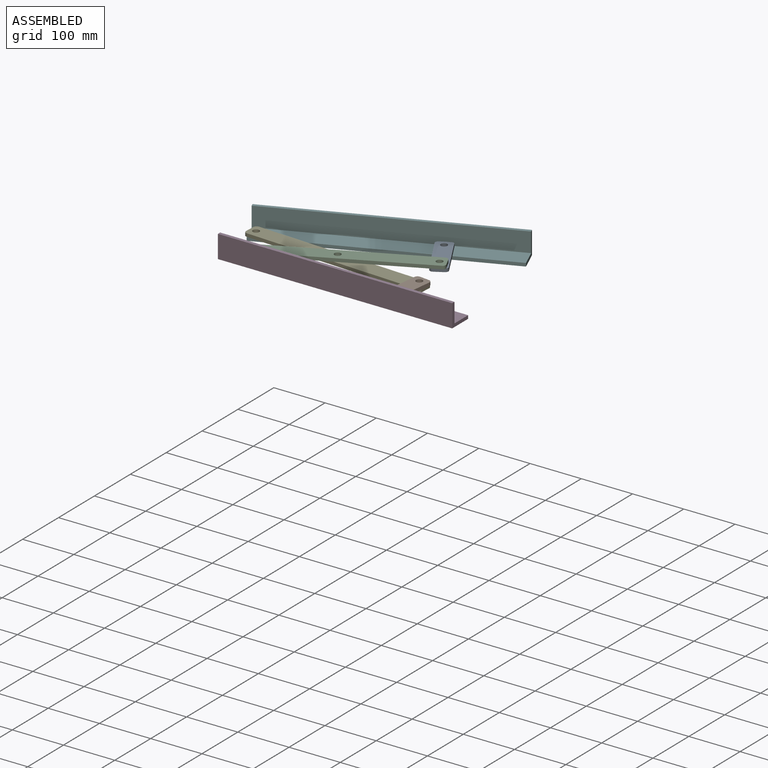
[diagram: assembled view]
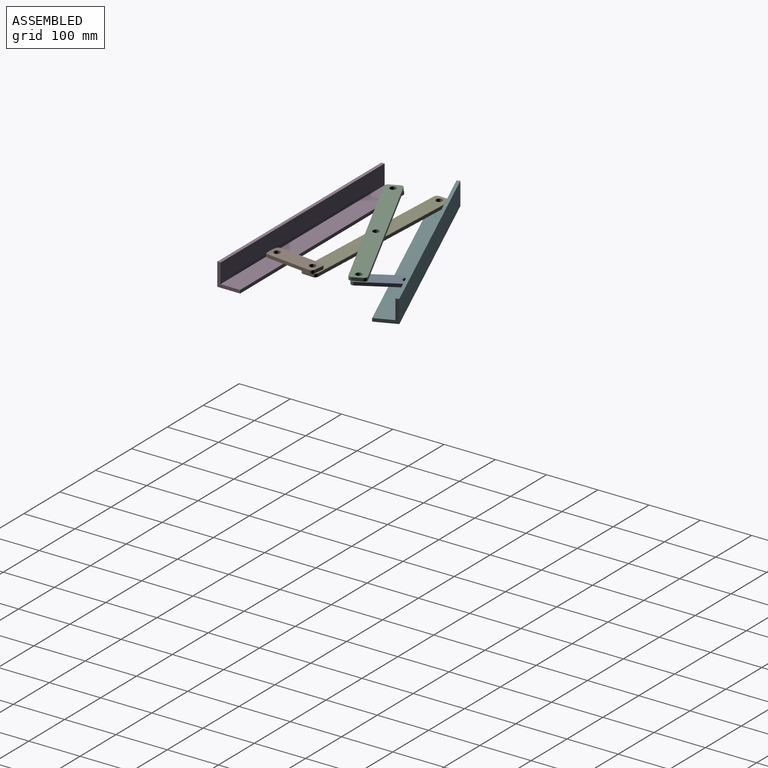
[diagram: assembled view, second angle]
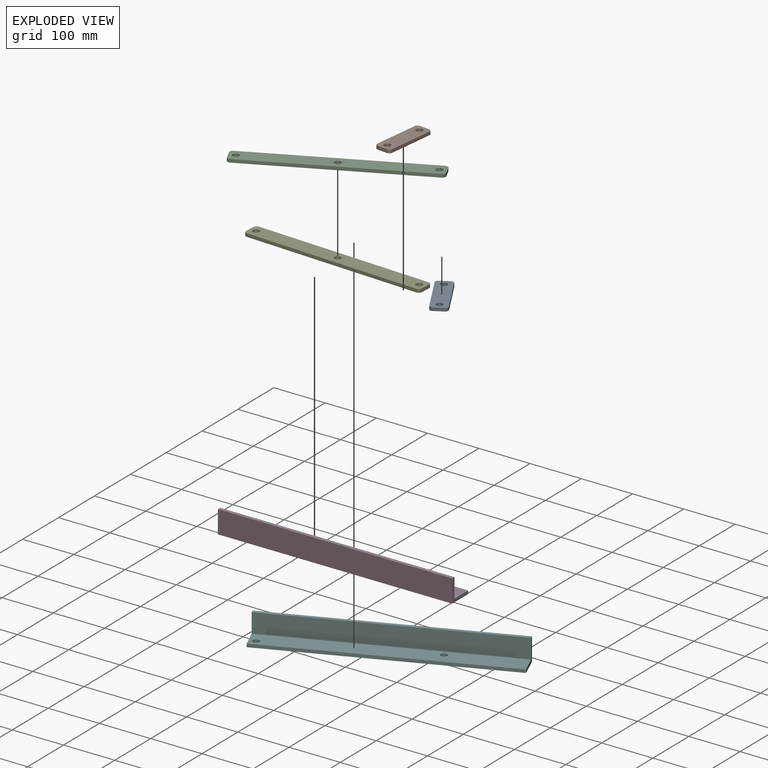
[diagram: exploded view]
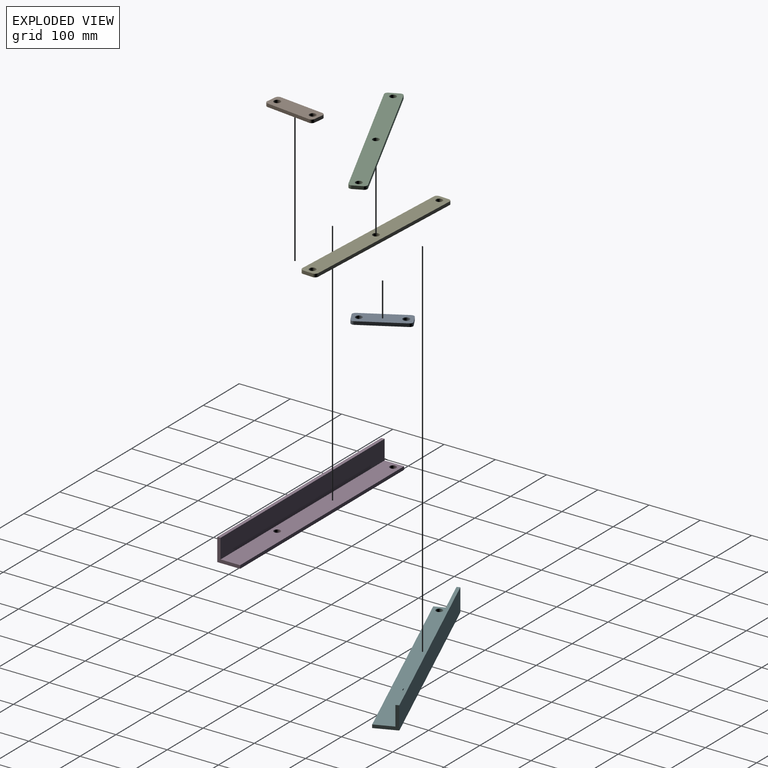
[diagram: exploded view, second angle]
ASSEMBLY  parts=6 mates=7
PART A: 12 faces, bbox 101.6x31.8x6.4 mm
  f0: plane 19.05x6.35mm, normal (1,0,0), area 121mm2, adj f1,f9,f10,f11
  f1: cylinder r=6.35mm len=6.35mm, axis (0,0,-1), area 63.3mm2, adj f0,f2,f10,f11
  f2: plane 88.9x6.35mm, normal (0,1,0), area 564.5mm2, adj f1,f3,f10,f11
  f3: cylinder r=6.35mm len=6.35mm, axis (0,0,-1), area 63.3mm2, adj f2,f4,f10,f11
  f4: plane 19.05x6.35mm, normal (-1,0,0), area 121mm2, adj f3,f5,f10,f11
  f5: cylinder r=6.35mm len=6.35mm, axis (0,0,-1), area 63.3mm2, adj f4,f6,f10,f11
  f6: plane 88.9x6.35mm, normal (0,-1,0), area 564.5mm2, adj f5,f9,f10,f11
  f7: cylinder r=6.35mm len=12.7mm, axis (0,0,-1), area 253.4mm2, adj f10,f11
  f8: cylinder r=6.35mm len=12.7mm, axis (0,0,-1), area 253.4mm2, adj f10,f11
  f9: cylinder r=6.35mm len=6.35mm, axis (0,0,-1), area 63.3mm2, adj f0,f6,f10,f11
  f10: plane 101.6x31.75mm, normal (0,0,1), area 2937.8mm2, adj f0,f1,f2,f3,f4,f5,f6,f7
  f11: plane 101.6x31.75mm, normal (0,0,-1), area 2937.8mm2, adj f0,f1,f2,f3,f4,f5,f6,f7
PART B: same geometry as A
PART C: 13 faces, bbox 355.6x31.8x6.4 mm
  f0: plane 19.05x6.35mm, normal (1,0,0), area 121mm2, adj f1,f9,f10,f11
  f1: cylinder r=6.35mm len=6.35mm, axis (0,0,-1), area 63.3mm2, adj f0,f2,f10,f11
  f2: plane 342.9x6.35mm, normal (0,1,0), area 2177.4mm2, adj f1,f3,f10,f11
  f3: cylinder r=6.35mm len=6.35mm, axis (0,0,-1), area 63.3mm2, adj f2,f4,f10,f11
  f4: plane 19.05x6.35mm, normal (-1,0,0), area 121mm2, adj f3,f5,f10,f11
  f5: cylinder r=6.35mm len=6.35mm, axis (0,0,-1), area 63.3mm2, adj f4,f6,f10,f11
  f6: plane 342.9x6.35mm, normal (0,-1,0), area 2177.4mm2, adj f5,f9,f10,f11
  f7: cylinder r=6.35mm len=12.7mm, axis (0,0,-1), area 253.4mm2, adj f10,f11
  f8: cylinder r=6.35mm len=12.7mm, axis (0,0,-1), area 253.4mm2, adj f10,f11
  f9: cylinder r=6.35mm len=6.35mm, axis (0,0,-1), area 63.3mm2, adj f0,f6,f10,f11
  f10: plane 355.6x31.75mm, normal (0,0,1), area 10875.7mm2, adj f0,f1,f2,f3,f4,f5,f6,f7
  f11: plane 355.6x31.75mm, normal (0,0,-1), area 10875.7mm2, adj f0,f1,f2,f3,f4,f5,f6,f7
  f12: cylinder r=6.35mm len=12.7mm, axis (0,0,1), area 253.4mm2, adj f10,f11
PART D: 10 faces, bbox 457.2x44.5x44.5 mm
  f0: plane 457.2x44.45mm, normal (0,0,-1), area 20069.2mm2, adj f1,f5,f6,f7,f8,f9
  f1: plane 457.2x6.35mm, normal (0,1,0), area 2903.2mm2, adj f0,f2,f6,f7
  f2: plane 457.2x38.1mm, normal (0,0,1), area 17166mm2, adj f1,f3,f6,f7,f8,f9
  f3: plane 457.2x38.1mm, normal (0,1,0), area 17419.3mm2, adj f2,f4,f6,f7
  f4: plane 457.2x6.35mm, normal (0,0,1), area 2903.2mm2, adj f3,f5,f6,f7
  f5: plane 457.2x44.45mm, normal (0,-1,0), area 20322.5mm2, adj f0,f4,f6,f7
  f6: plane 44.45x44.45mm, normal (1,0,0), area 524.2mm2, adj f0,f1,f2,f3,f4,f5
  f7: plane 44.45x44.45mm, normal (-1,0,0), area 524.2mm2, adj f0,f1,f2,f3,f4,f5
  f8: cylinder r=6.35mm len=12.7mm, axis (0,0,1), area 253.4mm2, adj f0,f2
  f9: cylinder r=6.35mm len=12.7mm, axis (0,0,1), area 253.4mm2, adj f0,f2
PART E: same geometry as C
PART F: 10 faces, bbox 457.2x44.5x44.5 mm
  f0: plane 457.2x44.45mm, normal (0,0,-1), area 20069.2mm2, adj f1,f5,f6,f7,f8,f9
  f1: plane 457.2x6.35mm, normal (0,-1,0), area 2903.2mm2, adj f0,f2,f6,f7
  f2: plane 457.2x38.1mm, normal (0,0,1), area 17166mm2, adj f1,f3,f6,f7,f8,f9
  f3: plane 457.2x38.1mm, normal (0,-1,0), area 17419.3mm2, adj f2,f4,f6,f7
  f4: plane 457.2x6.35mm, normal (0,0,1), area 2903.2mm2, adj f3,f5,f6,f7
  f5: plane 457.2x44.45mm, normal (0,1,0), area 20322.5mm2, adj f0,f4,f6,f7
  f6: plane 44.45x44.45mm, normal (1,0,0), area 524.2mm2, adj f0,f1,f2,f3,f4,f5
  f7: plane 44.45x44.45mm, normal (-1,0,0), area 524.2mm2, adj f0,f1,f2,f3,f4,f5
  f8: cylinder r=6.35mm len=12.7mm, axis (0,0,1), area 253.4mm2, adj f0,f2
  f9: cylinder r=6.35mm len=12.7mm, axis (0,0,1), area 253.4mm2, adj f0,f2
PLACE A rot(axis=(0,0,-1),60.4deg) t=(-18.21,493.97,-55.98)mm
PLACE B rot(axis=(0,0,-1),96.9deg) t=(196.62,453.37,-49.63)mm
PLACE C rot(axis=(0,0,1),25.5deg) t=(-18.98,-22.61,-49.63)mm
PLACE D t=(-51.88,61.53,-49.63)mm fixed
PLACE E rot(axis=(0,0,1),177.2deg) t=(311.85,267.88,-55.98)mm
PLACE F rot(axis=(0,0,1),22.7deg) t=(116.84,-272.02,-55.98)mm
MATE revolute D.f8 <-> B.f7  axis (0,0,1) through (265.62,80.58,-43.28)mm
MATE revolute C.f7 <-> A.f7  axis (0,0,-1) through (258.93,235.27,-43.28)mm
MATE revolute E.f12 <-> C.f12  axis (0,0,1) through (109.88,164.28,-43.28)mm
MATE revolute F.f9 <-> E.f7  axis (0,0,1) through (-55.03,172.32,-49.63)mm
MATE revolute A.f8 <-> F.f8  axis (0,0,-1) through (221.32,301.54,-49.63)mm
MATE revolute E.f8 <-> B.f8  axis (0,0,-1) through (274.78,156.23,-43.28)mm
MATE revolute C.f8 <-> D.f9  axis (0,0,-1) through (-39.18,93.28,-43.28)mm
